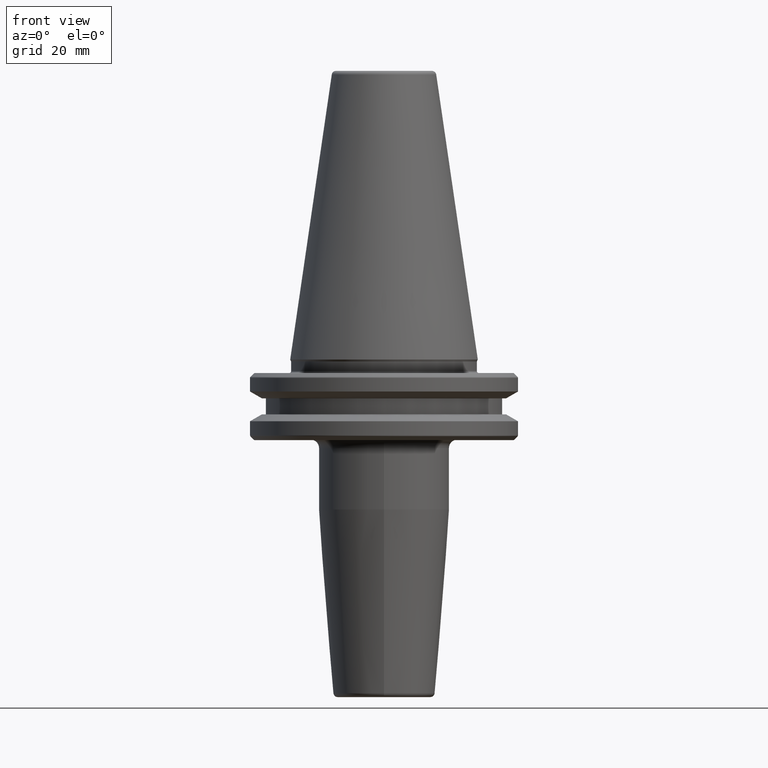
[diagram: clean part render]
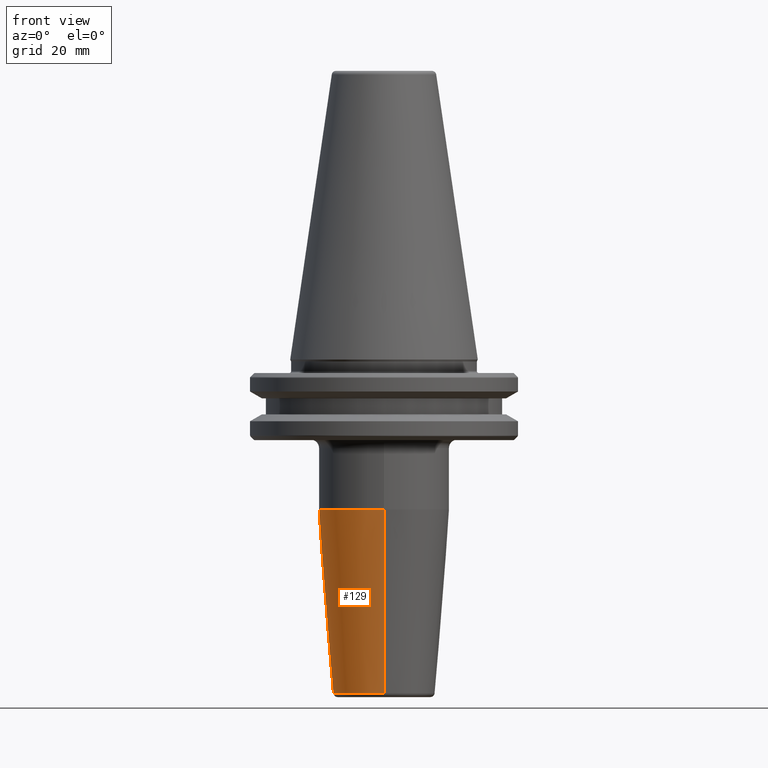
[diagram: same view with one face highlighted and labeled with its STEP entity id]
A machine part, front view. The second image highlights one B-rep face of the part: STEP entity #129.
In plain terms, the highlighted conical surface has half-angle 4.5 deg.
Its self-contained STEP definition (entity closure, byte-faithful):
#7 = CARTESIAN_POINT ( 'NONE',  ( 0.0000000000000000000, 12.07252684207492000, -79.07845909572785100 ) ) ;
#71 = DIRECTION ( 'NONE',  ( 0.0000000000000000000, 1.000000000000000000, 4.476705744456272400E-016 ) ) ;
#105 = VERTEX_POINT ( 'NONE', #535 ) ;
#118 = LINE ( 'NONE', #1152, #683 ) ;
#129 = ADVANCED_FACE ( 'NONE', ( #389 ), #170, .T. ) ;
#146 = DIRECTION ( 'NONE',  ( 0.0000000000000000000, -1.000000000000000000, 0.0000000000000000000 ) ) ;
#156 = AXIS2_PLACEMENT_3D ( 'NONE', #307, #803, #1178 ) ;
#170 = CONICAL_SURFACE ( 'NONE', #1017, 12.07252684207492000, 0.07853981633974531400 ) ;
#219 = ORIENTED_EDGE ( 'NONE', *, *, #690, .T. ) ;
#236 = CARTESIAN_POINT ( 'NONE',  ( 0.0000000000000000000, -15.50000000000002500, -35.52828342338864300 ) ) ;
#244 = CIRCLE ( 'NONE', #156, 12.07252684207492000 ) ;
#307 = CARTESIAN_POINT ( 'NONE',  ( 0.0000000000000000000, -2.675592333722434000E-016, -79.07845909572785100 ) ) ;
#310 = VERTEX_POINT ( 'NONE', #7 ) ;
#389 = FACE_OUTER_BOUND ( 'NONE', #599, .T. ) ;
#398 = CARTESIAN_POINT ( 'NONE',  ( 0.0000000000000000000, -12.07252684207492000, -79.07845909572785100 ) ) ;
#403 = EDGE_CURVE ( 'NONE', #105, #310, #244, .T. ) ;
#450 = AXIS2_PLACEMENT_3D ( 'NONE', #1235, #670, #71 ) ;
#499 = CIRCLE ( 'NONE', #450, 15.50000000000001200 ) ;
#535 = CARTESIAN_POINT ( 'NONE',  ( 1.478458135476755500E-015, -12.07252684207492000, -79.07845909572785100 ) ) ;
#575 = VERTEX_POINT ( 'NONE', #1113 ) ;
#579 = DIRECTION ( 'NONE',  ( 0.0000000000000000000, -0.07845909572784569300, 0.9969173337331278500 ) ) ;
#583 = DIRECTION ( 'NONE',  ( 9.608468044710167400E-018, 0.07845909572784513800, 0.9969173337331278500 ) ) ;
#599 = EDGE_LOOP ( 'NONE', ( #813, #939, #219, #1186 ) ) ;
#606 = LINE ( 'NONE', #398, #1045 ) ;
#662 = VERTEX_POINT ( 'NONE', #236 ) ;
#670 = DIRECTION ( 'NONE',  ( -0.0000000000000000000, 2.829168385244881300E-016, -1.000000000000000000 ) ) ;
#683 = VECTOR ( 'NONE', #583, 1000.000000000000100 ) ;
#690 = EDGE_CURVE ( 'NONE', #105, #662, #606, .T. ) ;
#803 = DIRECTION ( 'NONE',  ( -0.0000000000000000000, 2.829168385244881300E-016, -1.000000000000000000 ) ) ;
#813 = ORIENTED_EDGE ( 'NONE', *, *, #884, .F. ) ;
#884 = EDGE_CURVE ( 'NONE', #310, #575, #118, .T. ) ;
#912 = DIRECTION ( 'NONE',  ( 0.0000000000000000000, -2.829168385244881300E-016, 1.000000000000000000 ) ) ;
#939 = ORIENTED_EDGE ( 'NONE', *, *, #403, .F. ) ;
#1017 = AXIS2_PLACEMENT_3D ( 'NONE', #1104, #912, #146 ) ;
#1045 = VECTOR ( 'NONE', #579, 1000.000000000000100 ) ;
#1047 = EDGE_CURVE ( 'NONE', #662, #575, #499, .T. ) ;
#1104 = CARTESIAN_POINT ( 'NONE',  ( 0.0000000000000000000, -2.675592333722434000E-016, -79.07845909572785100 ) ) ;
#1113 = CARTESIAN_POINT ( 'NONE',  ( 1.898202538678398700E-015, 15.50000000000000000, -35.52828342338864300 ) ) ;
#1152 = CARTESIAN_POINT ( 'NONE',  ( 1.478458135476755500E-015, 12.07252684207492000, -79.07845909572785100 ) ) ;
#1178 = DIRECTION ( 'NONE',  ( 0.0000000000000000000, 1.000000000000000000, 0.0000000000000000000 ) ) ;
#1186 = ORIENTED_EDGE ( 'NONE', *, *, #1047, .T. ) ;
#1235 = CARTESIAN_POINT ( 'NONE',  ( 0.0000000000000000000, -1.258863725177652500E-014, -35.52828342338864300 ) ) ;